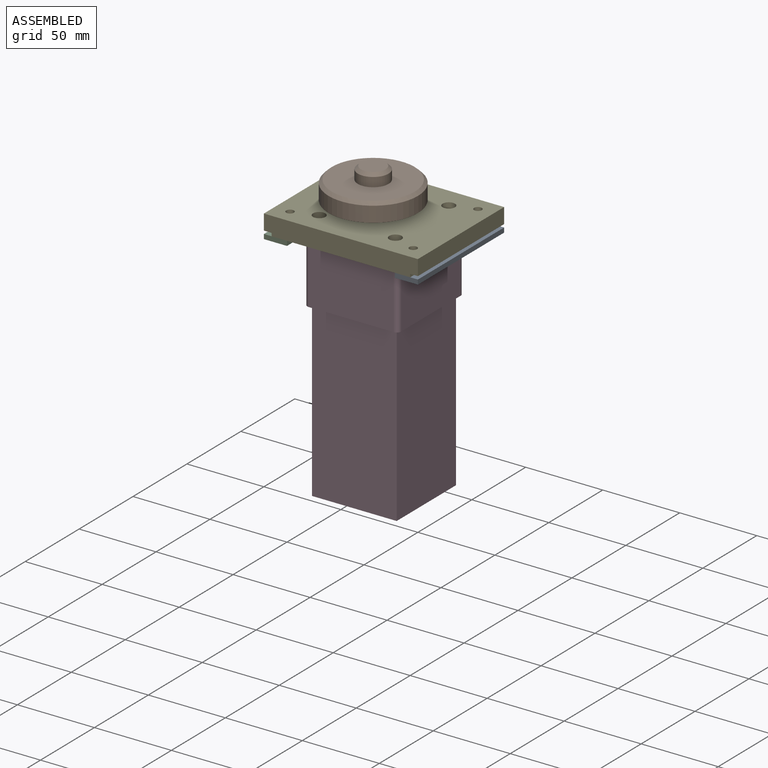
[diagram: assembled view]
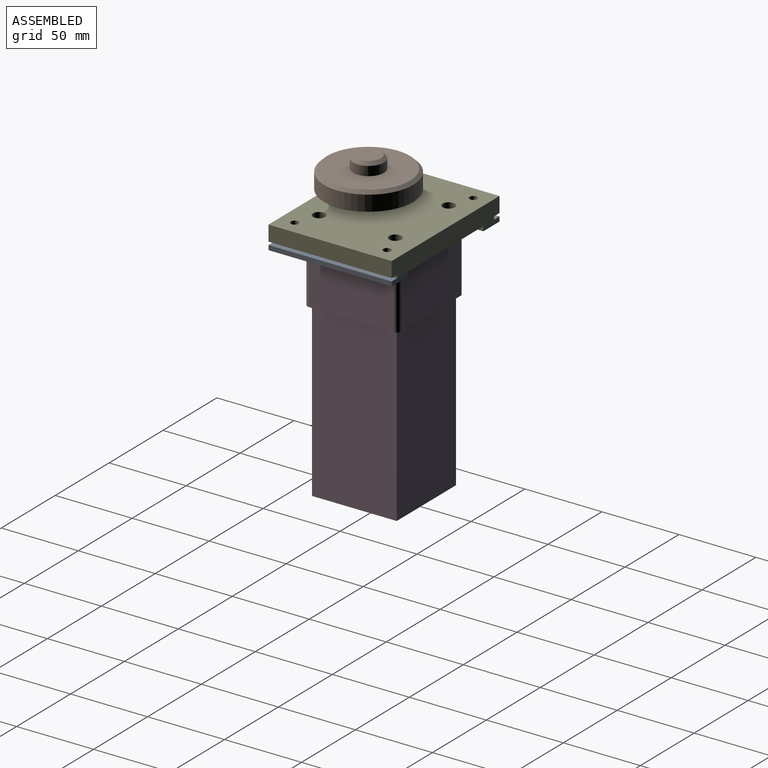
[diagram: assembled view, second angle]
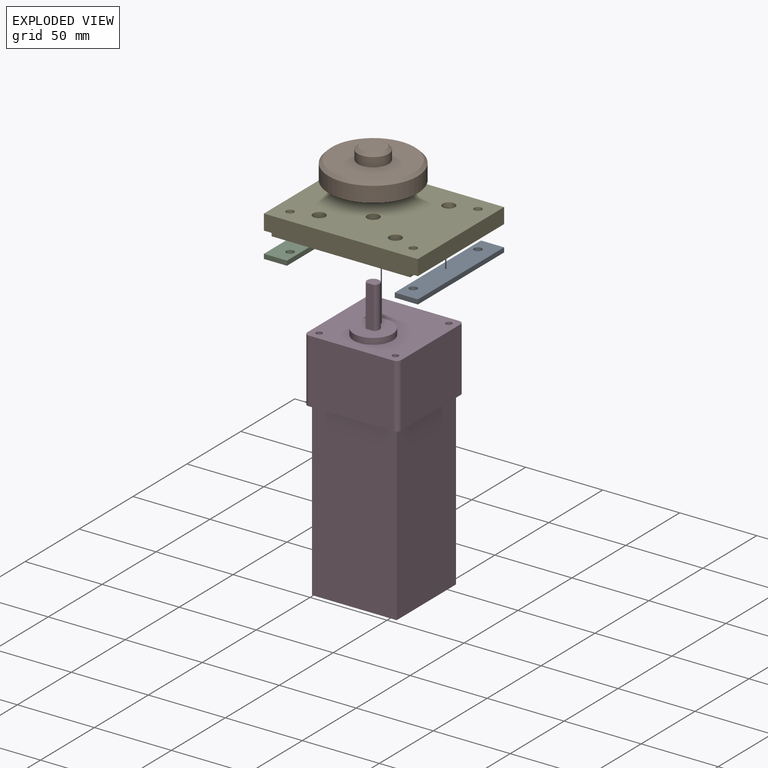
[diagram: exploded view]
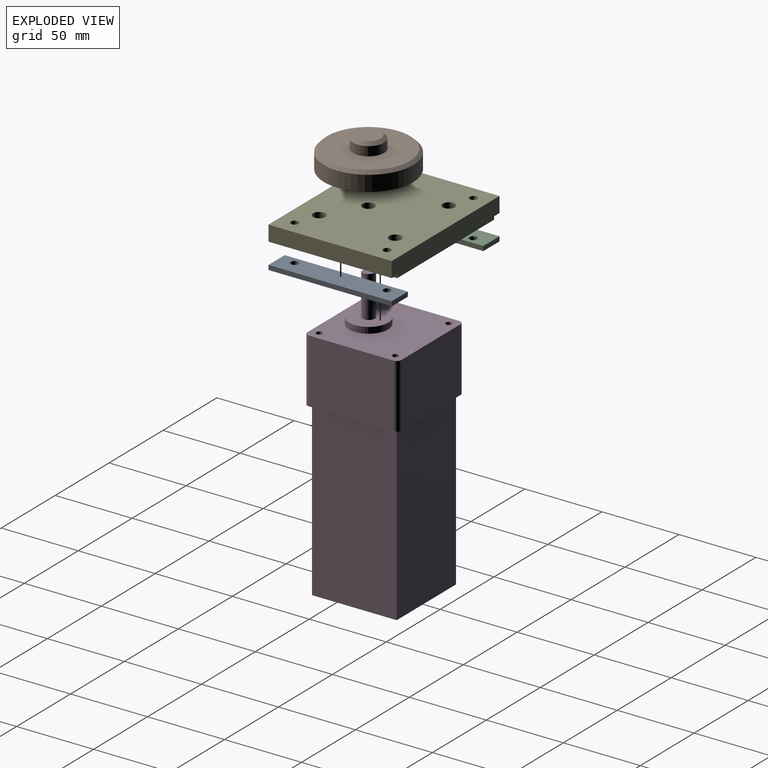
[diagram: exploded view, second angle]
ASSEMBLY  parts=5 mates=4
PART A: 8 faces, bbox 15x80x3 mm
  f0: plane 15x3mm, normal (0,-1,0), area 45mm2, adj f1,f5,f6,f7
  f1: plane 80x3mm, normal (1,0,0), area 240mm2, adj f0,f2,f6,f7
  f2: plane 15x3mm, normal (0,1,0), area 45mm2, adj f1,f5,f6,f7
  f3: cylinder r=2.5mm len=5mm, axis (0,0,-1), area 47.1mm2, adj f6,f7
  f4: cylinder r=2.5mm len=5mm, axis (0,0,-1), area 47.1mm2, adj f6,f7
  f5: plane 80x3mm, normal (-1,0,0), area 240mm2, adj f0,f2,f6,f7
  f6: plane 80x15mm, normal (0,0,1), area 1160.7mm2, adj f0,f1,f2,f3,f4,f5
  f7: plane 80x15mm, normal (0,0,-1), area 1160.7mm2, adj f0,f1,f2,f3,f4,f5
PART B: 9 faces, bbox 58x58x20 mm
  f0: plane 8x8mm, normal (0,0,-1), area 50.3mm2, adj f6
  f1: plane 16x16mm, normal (0,0,1), area 201.1mm2, adj f8
  f2: cylinder r=10mm len=20mm, axis (0,0,1), area 377mm2, adj f3,f8
  f3: plane 54x54mm, normal (0,0,1), area 1976.1mm2, adj f2,f7
  f4: cylinder r=29mm len=58mm, axis (0,0,1), area 1822.1mm2, adj f5,f7
  f5: plane 58x58mm, normal (0,0,-1), area 2591.8mm2, adj f4,f6
  f6: cylinder r=4mm len=10mm, axis (0,0,1), area 251.3mm2, adj f0,f5
  f7: cone r=27mm half-angle=45deg, axis (0,0,-1), area 497.6mm2, adj f3,f4
  f8: cone r=8mm half-angle=45deg, axis (0,0,-1), area 159.9mm2, adj f1,f2
PART C: same geometry as A
PART D: 28 faces, bbox 61x61x184.5 mm
  f0: plane 25.4x25.4mm, normal (0,0,1), area 460.1mm2, adj f11,f12,f13
  f1: plane 55x41.5mm, normal (0,-1,0), area 2282.5mm2, adj f5,f6,f7,f10
  f2: plane 55x41.5mm, normal (1,0,0), area 2282.5mm2, adj f5,f6,f7,f8
  f3: plane 55x41.5mm, normal (0,1,0), area 2282.5mm2, adj f5,f6,f8,f9
  f4: plane 55x41.5mm, normal (-1,0,0), area 2282.5mm2, adj f5,f6,f9,f10
  f5: plane 61x61mm, normal (0,0,1), area 3156.3mm2, adj f1,f2,f3,f4,f7,f8,f9,f10
  f6: plane 61x61mm, normal (0,0,-1), area 688.3mm2, adj f1,f2,f3,f4,f7,f8,f9,f10
  f7: cylinder r=3mm len=41.5mm, axis (0,0,1), area 195.6mm2, adj f1,f2,f5,f6
  f8: cylinder r=3mm len=41.5mm, axis (0,0,-1), area 195.6mm2, adj f2,f3,f5,f6
  f9: cylinder r=3mm len=41.5mm, axis (0,0,1), area 195.6mm2, adj f3,f4,f5,f6
  f10: cylinder r=3mm len=41.5mm, axis (0,0,-1), area 195.6mm2, adj f1,f4,f5,f6
  f11: cylinder r=12.7mm len=25.4mm, axis (0,0,-1), area 319.2mm2, adj f0,f5
  f12: plane 27x5.29mm, normal (0,1,0), area 142.9mm2, adj f0,f13,f14
  f13: cylinder r=4mm len=27mm, axis (0,0,-1), area 522.5mm2, adj f0,f12,f14
  f14: plane 8x7mm, normal (0,0,1), area 46.6mm2, adj f12,f13
  f15: plane 112x55mm, normal (0,1,0), area 6160mm2, adj f6,f16,f18,f19
  f16: plane 112x55mm, normal (1,0,0), area 6160mm2, adj f6,f15,f17,f19
  f17: plane 112x55mm, normal (0,-1,0), area 6160mm2, adj f6,f16,f18,f19
  f18: plane 112x55mm, normal (-1,0,0), area 6160mm2, adj f6,f15,f17,f19
  f19: plane 55x55mm, normal (0,0,-1), area 3025mm2, adj f15,f16,f17,f18
  f20: cylinder r=2mm len=15mm, axis (0,0,1), area 188.5mm2, adj f5,f21
  f21: plane 4x4mm, normal (0,0,1), area 12.6mm2, adj f20
  f22: cylinder r=2mm len=15mm, axis (0,0,1), area 188.5mm2, adj f5,f23
  f23: plane 4x4mm, normal (0,0,1), area 12.6mm2, adj f22
  f24: cylinder r=2mm len=15mm, axis (0,0,1), area 188.5mm2, adj f5,f25
  f25: plane 4x4mm, normal (0,0,1), area 12.6mm2, adj f24
  f26: cylinder r=2mm len=15mm, axis (0,0,1), area 188.5mm2, adj f5,f27
  f27: plane 4x4mm, normal (0,0,1), area 12.6mm2, adj f26
PART E: 29 faces, bbox 100x80x12 mm
  f0: cylinder r=2mm len=4mm, axis (0,0,-1), area 50.3mm2, adj f5,f28
  f1: cylinder r=2mm len=4mm, axis (0,0,-1), area 50.3mm2, adj f5,f26
  f2: cylinder r=2mm len=4mm, axis (0,0,-1), area 50.3mm2, adj f5,f24
  f3: cylinder r=2mm len=4mm, axis (0,0,-1), area 50.3mm2, adj f5,f22
  f4: plane 100x12mm, normal (0,-1,0), area 1180mm2, adj f5,f6,f8,f9,f10,f11,f12,f13
  f5: plane 90x80mm, normal (0,0,-1), area 6560.5mm2, adj f0,f1,f2,f3,f4,f7,f10,f12
  f6: plane 80x10mm, normal (1,0,0), area 800mm2, adj f4,f7,f9,f11
  f7: plane 100x12mm, normal (0,1,0), area 1180mm2, adj f5,f6,f8,f9,f10,f11,f12,f13
  f8: plane 80x10mm, normal (-1,0,0), area 800mm2, adj f4,f7,f9,f13
  f9: plane 100x80mm, normal (0,0,1), area 7670.1mm2, adj f4,f6,f7,f8,f16,f17,f18,f19
  f10: plane 80x2mm, normal (1,0,0), area 160mm2, adj f4,f5,f7,f11
  f11: plane 80x5mm, normal (0,0,-1), area 400mm2, adj f4,f6,f7,f10
  f12: plane 80x2mm, normal (-1,0,0), area 160mm2, adj f4,f5,f7,f13
  f13: plane 80x5mm, normal (0,0,-1), area 400mm2, adj f4,f7,f8,f12
  f14: cylinder r=12.75mm len=25.5mm, axis (0,0,-1), area 400.6mm2, adj f5,f15
  f15: plane 25.5x25.5mm, normal (0,0,-1), area 460.4mm2, adj f14,f16
  f16: cylinder r=4mm len=8mm, axis (0,0,-1), area 175.9mm2, adj f9,f15
  f17: cylinder r=2.5mm len=12mm, axis (0,0,-1), area 188.5mm2, adj f5,f9
  f18: cylinder r=2.5mm len=12mm, axis (0,0,-1), area 188.5mm2, adj f5,f9
  f19: cylinder r=2.5mm len=12mm, axis (0,0,-1), area 188.5mm2, adj f5,f9
  f20: cylinder r=2.5mm len=12mm, axis (0,0,-1), area 188.5mm2, adj f5,f9
  f21: cylinder r=4mm len=8mm, axis (0,0,1), area 201.1mm2, adj f9,f22
  f22: plane 8x8mm, normal (0,0,1), area 37.7mm2, adj f3,f21
  f23: cylinder r=4mm len=8mm, axis (0,0,1), area 201.1mm2, adj f9,f24
  f24: plane 8x8mm, normal (0,0,1), area 37.7mm2, adj f2,f23
  f25: cylinder r=4mm len=8mm, axis (0,0,1), area 201.1mm2, adj f9,f26
  f26: plane 8x8mm, normal (0,0,1), area 37.7mm2, adj f1,f25
  f27: cylinder r=4mm len=8mm, axis (0,0,1), area 201.1mm2, adj f9,f28
  f28: plane 8x8mm, normal (0,0,1), area 37.7mm2, adj f0,f27
PLACE A rot(axis=(0,0,1),180deg) t=(138.83,81.02,35.1)mm
PLACE B rot(axis=(0,0,1),8.4deg) t=(96.33,71.02,60.1)mm
PLACE C t=(53.83,81.02,35.1)mm
PLACE D rot(axis=(0,0,1),180deg) t=(96.33,81.02,-2.4)mm
PLACE E t=(96.33,81.02,38.1)mm fixed
MATE fastened C.f3 <-> E.f18  axis (0,0,1) through (56.33,111.02,38.1)mm
MATE revolute B.f2 <-> D.f13  axis (0,0,-1) through (96.33,71.02,70.1)mm
MATE fastened D.f13 <-> E.f14  axis (0,0,1) through (96.33,71.02,43.1)mm
MATE fastened E.f17 <-> A.f4  axis (0,0,-1) through (136.33,111.02,38.1)mm
